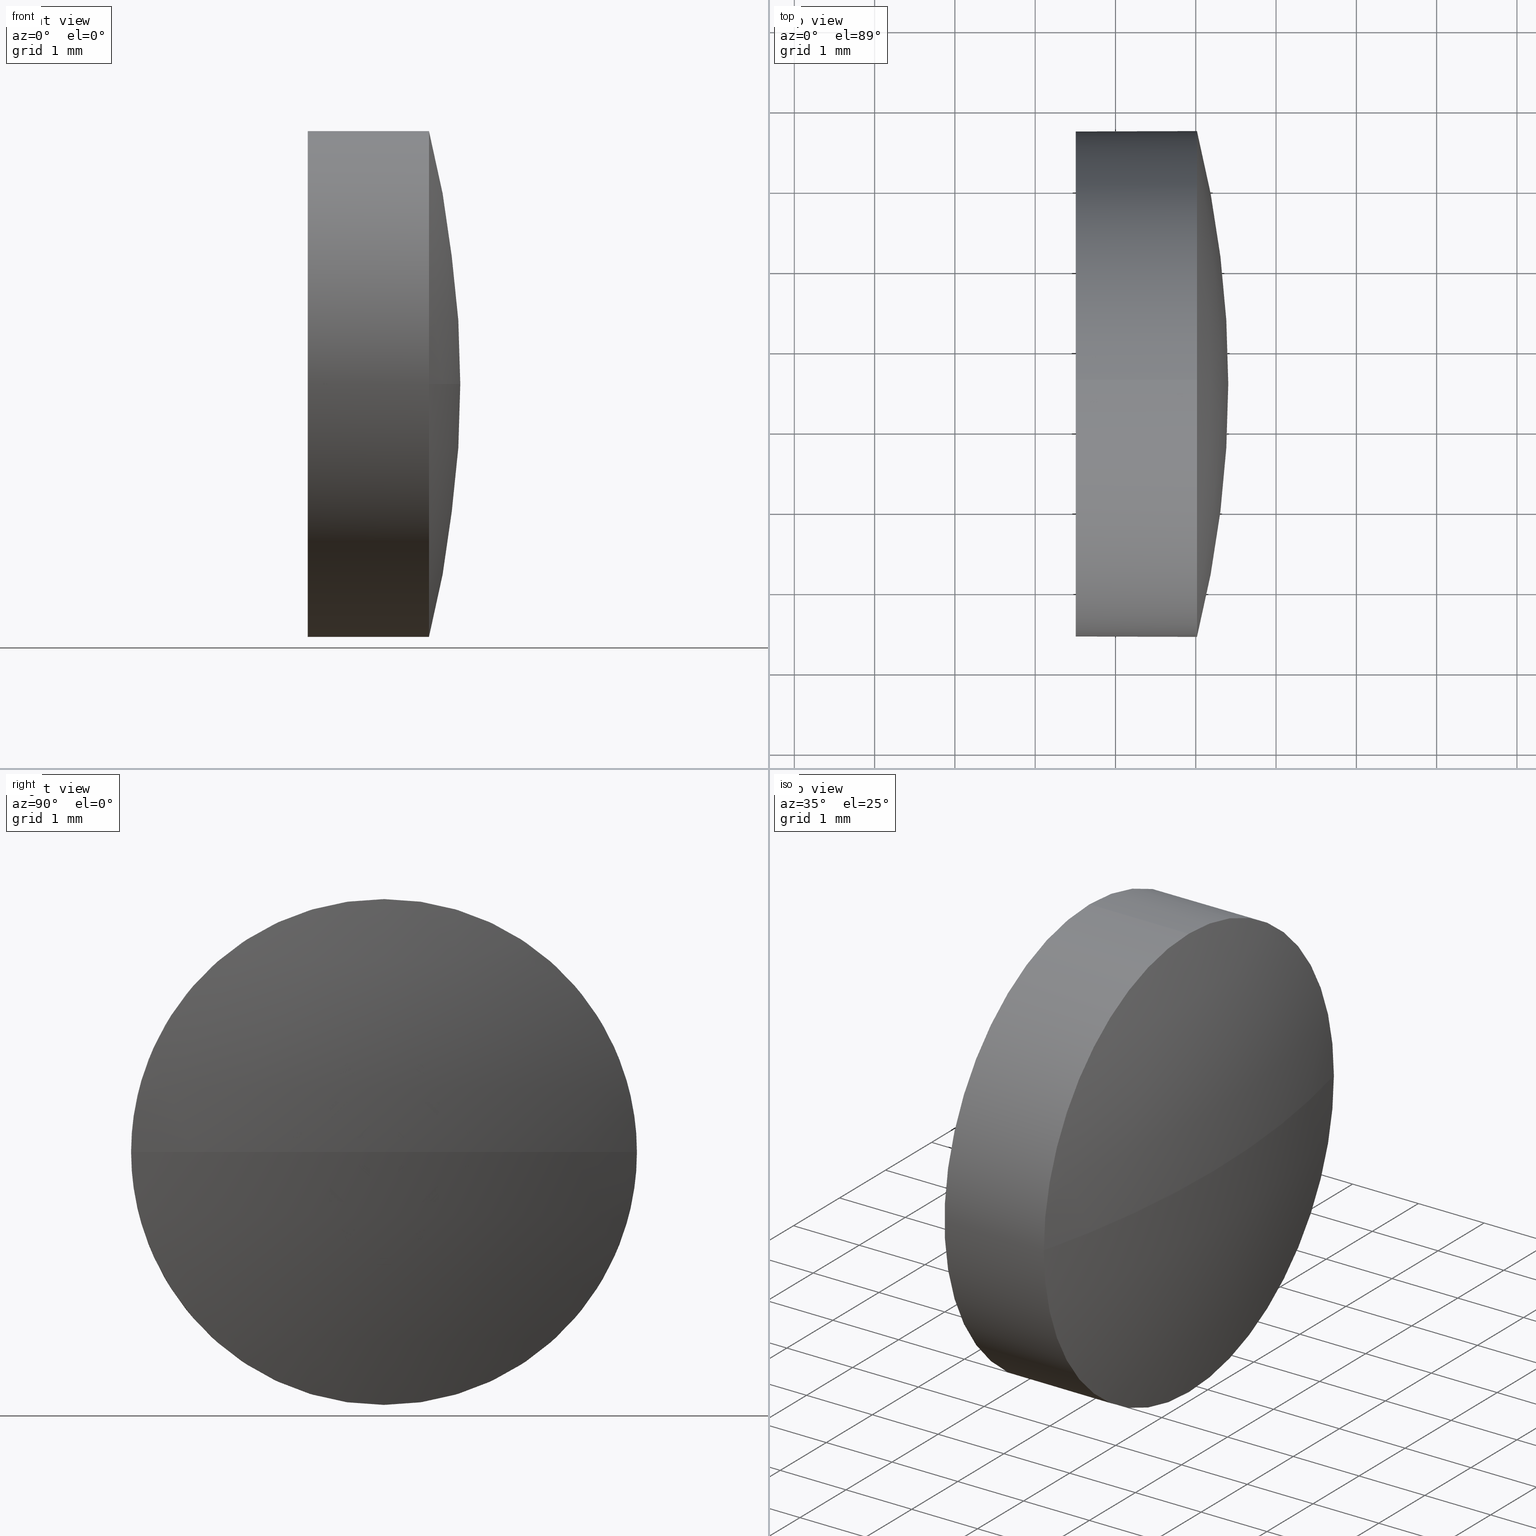
[diagram: canonical four-view strip — front | top / right | iso, engineering-drawing reading convention]
A machine part, canonical four-view strip (front | top / right | iso — engineering-drawing reading convention). The complete STEP part file that produces these views, byte-faithful:
ISO-10303-21;
HEADER;
FILE_DESCRIPTION (( 'STEP AP214' ),
    '1' );
FILE_NAME ('100183.STEP',
    '2019-05-21T03:13:47',
    ( '' ),
    ( '' ),
    'SwSTEP 2.0',
    'SolidWorks 2016',
    '' );
FILE_SCHEMA (( 'AUTOMOTIVE_DESIGN' ));
ENDSEC;

DATA;
#1 = PRODUCT_RELATED_PRODUCT_CATEGORY ( 'part', '', ( #81 ) ) ;
#2 = FACE_OUTER_BOUND ( 'NONE', #88, .T. ) ;
#3 = EDGE_LOOP ( 'NONE', ( #176, #147, #163, #174, #94 ) ) ;
#4 = AXIS2_PLACEMENT_3D ( 'NONE', #104, #184, #106 ) ;
#5 = CARTESIAN_POINT ( 'NONE',  ( 616.6993345842506600, 86.56717814228176200, 0.0000000000000000000 ) ) ;
#6 = CIRCLE ( 'NONE', #175, 3.149999999999999900 ) ;
#7 = CARTESIAN_POINT ( 'NONE',  ( 619.0150449967926500, 86.56717814228176200, 0.0000000000000000000 ) ) ;
#8 = PRODUCT_DEFINITION_FORMATION_WITH_SPECIFIED_SOURCE ( '�κ�', '', #81, .NOT_KNOWN. ) ;
#9 = ADVANCED_FACE ( 'NONE', ( #16 ), #151, .T. ) ;
#10 = CARTESIAN_POINT ( 'NONE',  ( 606.4888911506387800, 86.56717814228196100, 0.0000000000000000000 ) ) ;
#11 = PLANE ( 'NONE',  #70 ) ;
#12 = CARTESIAN_POINT ( 'NONE',  ( 619.0150449967926500, 86.56717814228176200, 0.0000000000000000000 ) ) ;
#13 = ORIENTED_EDGE ( 'NONE', *, *, #124, .T. ) ;
#14 = EDGE_LOOP ( 'NONE', ( #179, #43, #99, #171 ) ) ;
#15 = STYLED_ITEM ( 'NONE', ( #54 ), #46 ) ;
#16 = FACE_OUTER_BOUND ( 'NONE', #141, .T. ) ;
#17 = ORIENTED_EDGE ( 'NONE', *, *, #153, .T. ) ;
#18 = DIRECTION ( 'NONE',  ( 0.0000000000000000000, 0.0000000000000000000, 1.000000000000000000 ) ) ;
#19 = CARTESIAN_POINT ( 'NONE',  ( 606.4888911506387800, 86.56717814228196100, 0.0000000000000000000 ) ) ;
#20 = ORIENTED_EDGE ( 'NONE', *, *, #153, .F. ) ;
#21 = DIRECTION ( 'NONE',  ( -1.000000000000000000, -0.0000000000000000000, -0.0000000000000000000 ) ) ;
#22 = CARTESIAN_POINT ( 'NONE',  ( 617.5050449967925500, 86.56717814228176200, 0.0000000000000000000 ) ) ;
#23 = PRODUCT_DEFINITION_CONTEXT ( 'detailed design', #165, 'design' ) ;
#24 = APPLICATION_PROTOCOL_DEFINITION ( 'draft international standard', 'automotive_design', 1998, #80 ) ;
#25 = EDGE_LOOP ( 'NONE', ( #30, #74, #13, #86, #20 ) ) ;
#26 = DIRECTION ( 'NONE',  ( 0.0000000000000000000, 0.0000000000000000000, -1.000000000000000000 ) ) ;
#27 = UNCERTAINTY_MEASURE_WITH_UNIT (LENGTH_MEASURE( 1.000000000000000100E-005 ), #182, 'distance_accuracy_value', 'NONE');
#28 = AXIS2_PLACEMENT_3D ( 'NONE', #44, #167, #144 ) ;
#29 = PRODUCT_DEFINITION_SHAPE ( 'NONE', 'NONE',  #138 ) ;
#30 = ORIENTED_EDGE ( 'NONE', *, *, #119, .F. ) ;
#31 = VECTOR ( 'NONE', #136, 1000.000000000000000 ) ;
#32 = AXIS2_PLACEMENT_3D ( 'NONE', #60, #117, #41 ) ;
#33 = DIRECTION ( 'NONE',  ( 0.0000000000000000000, -1.000000000000000000, 0.0000000000000000000 ) ) ;
#34 = CARTESIAN_POINT ( 'NONE',  ( 616.6993345842506600, 86.56717814228176200, 0.0000000000000000000 ) ) ;
#35 = CARTESIAN_POINT ( 'NONE',  ( 619.0150449967926500, 86.56717814228176200, -3.149999999999999900 ) ) ;
#36 = CIRCLE ( 'NONE', #93, 3.149999999999999900 ) ;
#37 = CARTESIAN_POINT ( 'NONE',  ( 619.0150449967926500, 86.56717814228176200, 3.149999999999999900 ) ) ;
#38 = DIRECTION ( 'NONE',  ( -1.000000000000000000, 0.0000000000000000000, 0.0000000000000000000 ) ) ;
#39 = UNCERTAINTY_MEASURE_WITH_UNIT (LENGTH_MEASURE( 1.000000000000000100E-005 ), #75, 'distance_accuracy_value', 'NONE');
#40 = ADVANCED_FACE ( 'NONE', ( #137 ), #111, .T. ) ;
#41 = DIRECTION ( 'NONE',  ( 1.000000000000000000, 0.0000000000000000000, 0.0000000000000000000 ) ) ;
#42 = LINE ( 'NONE', #120, #31 ) ;
#43 = ORIENTED_EDGE ( 'NONE', *, *, #149, .T. ) ;
#44 = CARTESIAN_POINT ( 'NONE',  ( 606.4888911506387800, 86.56717814228196100, 0.0000000000000000000 ) ) ;
#45 = AXIS2_PLACEMENT_3D ( 'NONE', #12, #71, #166 ) ;
#46 = MANIFOLD_SOLID_BREP ( '��ת2', #87 ) ;
#47 = EDGE_CURVE ( 'NONE', #61, #128, #159, .T. ) ;
#48 = CIRCLE ( 'NONE', #161, 12.91615384615385400 ) ;
#49 = UNCERTAINTY_MEASURE_WITH_UNIT (LENGTH_MEASURE( 1.000000000000000100E-005 ), #118, 'distance_accuracy_value', 'NONE');
#50 = AXIS2_PLACEMENT_3D ( 'NONE', #34, #56, #100 ) ;
#51 = ORIENTED_EDGE ( 'NONE', *, *, #157, .F. ) ;
#52 = AXIS2_PLACEMENT_3D ( 'NONE', #5, #177, #18 ) ;
#53 =( NAMED_UNIT ( * ) PLANE_ANGLE_UNIT ( ) SI_UNIT ( $, .RADIAN. ) );
#54 = PRESENTATION_STYLE_ASSIGNMENT (( #77 ) ) ;
#55 = DIRECTION ( 'NONE',  ( 0.0000000000000000000, 0.0000000000000000000, 1.000000000000000000 ) ) ;
#56 = DIRECTION ( 'NONE',  ( -1.000000000000000000, -0.0000000000000000000, -0.0000000000000000000 ) ) ;
#57 =( NAMED_UNIT ( * ) SI_UNIT ( $, .STERADIAN. ) SOLID_ANGLE_UNIT ( ) );
#58 = ORIENTED_EDGE ( 'NONE', *, *, #47, .T. ) ;
#59 = PRODUCT_CONTEXT ( 'NONE', #80, 'mechanical' ) ;
#60 = CARTESIAN_POINT ( 'NONE',  ( 0.0000000000000000000, 0.0000000000000000000, 0.0000000000000000000 ) ) ;
#61 = VERTEX_POINT ( 'NONE', #114 ) ;
#62 = CARTESIAN_POINT ( 'NONE',  ( 617.5050449967925500, 86.56717814228176200, 0.0000000000000000000 ) ) ;
#63 = VERTEX_POINT ( 'NONE', #37 ) ;
#64 = PRESENTATION_LAYER_ASSIGNMENT (  '', '', ( #127 ) ) ;
#65 = SURFACE_STYLE_FILL_AREA ( #156 ) ;
#66 = CARTESIAN_POINT ( 'NONE',  ( 619.4050449967926400, 86.56717814228196100, 0.0000000000000000000 ) ) ;
#67 = CIRCLE ( 'NONE', #4, 3.149999999999999900 ) ;
#68 = SURFACE_SIDE_STYLE ('',( #140 ) ) ;
#69 = CARTESIAN_POINT ( 'NONE',  ( 619.0150449967926500, 83.41717814228191200, 0.0000000000000000000 ) ) ;
#70 = AXIS2_PLACEMENT_3D ( 'NONE', #62, #102, #83 ) ;
#71 = DIRECTION ( 'NONE',  ( -1.000000000000000000, -0.0000000000000000000, -0.0000000000000000000 ) ) ;
#72 = EDGE_CURVE ( 'NONE', #63, #168, #36, .T. ) ;
#73 = AXIS2_PLACEMENT_3D ( 'NONE', #10, #143, #160 ) ;
#74 = ORIENTED_EDGE ( 'NONE', *, *, #185, .T. ) ;
#75 =( LENGTH_UNIT ( ) NAMED_UNIT ( * ) SI_UNIT ( .MILLI., .METRE. ) );
#76 =( GEOMETRIC_REPRESENTATION_CONTEXT ( 3 ) GLOBAL_UNCERTAINTY_ASSIGNED_CONTEXT ( ( #49 ) ) GLOBAL_UNIT_ASSIGNED_CONTEXT ( ( #118, #103, #57 ) ) REPRESENTATION_CONTEXT ( 'NONE', 'WORKASPACE' ) );
#77 = SURFACE_STYLE_USAGE ( .BOTH. , #90 ) ;
#78 = PRESENTATION_LAYER_ASSIGNMENT (  '', '', ( #15 ) ) ;
#79 = DIRECTION ( 'NONE',  ( -1.000000000000000000, -0.0000000000000000000, -0.0000000000000000000 ) ) ;
#80 = APPLICATION_CONTEXT ( 'automotive_design' ) ;
#81 = PRODUCT ( '100183', '100183', '', ( #59 ) ) ;
#82 = ADVANCED_FACE ( 'NONE', ( #139 ), #98, .T. ) ;
#83 = DIRECTION ( 'NONE',  ( 0.0000000000000000000, 0.0000000000000000000, -1.000000000000000000 ) ) ;
#84 = SURFACE_STYLE_USAGE ( .BOTH. , #68 ) ;
#85 = CIRCLE ( 'NONE', #28, 12.91615384615382700 ) ;
#86 = ORIENTED_EDGE ( 'NONE', *, *, #132, .T. ) ;
#87 = CLOSED_SHELL ( 'NONE', ( #82, #40, #9, #113, #180 ) ) ;
#88 = EDGE_LOOP ( 'NONE', ( #58, #17 ) ) ;
#89 = DIRECTION ( 'NONE',  ( -1.000000000000000000, -0.0000000000000000000, -0.0000000000000000000 ) ) ;
#90 = SURFACE_SIDE_STYLE ('',( #65 ) ) ;
#91 = DIRECTION ( 'NONE',  ( -1.000000000000000000, -0.0000000000000000000, -0.0000000000000000000 ) ) ;
#92 =( NAMED_UNIT ( * ) SI_UNIT ( $, .STERADIAN. ) SOLID_ANGLE_UNIT ( ) );
#93 = AXIS2_PLACEMENT_3D ( 'NONE', #7, #89, #129 ) ;
#94 = ORIENTED_EDGE ( 'NONE', *, *, #72, .T. ) ;
#95 = AXIS2_PLACEMENT_3D ( 'NONE', #19, #55, #33 ) ;
#96 = CIRCLE ( 'NONE', #186, 3.149999999999999900 ) ;
#97 = ORIENTED_EDGE ( 'NONE', *, *, #185, .F. ) ;
#98 = CYLINDRICAL_SURFACE ( 'NONE', #50, 3.149999999999999900 ) ;
#99 = ORIENTED_EDGE ( 'NONE', *, *, #72, .F. ) ;
#100 = DIRECTION ( 'NONE',  ( 0.0000000000000000000, 0.0000000000000000000, 1.000000000000000000 ) ) ;
#101 = AXIS2_PLACEMENT_3D ( 'NONE', #22, #21, #130 ) ;
#102 = DIRECTION ( 'NONE',  ( 1.000000000000000000, 0.0000000000000000000, 0.0000000000000000000 ) ) ;
#103 =( NAMED_UNIT ( * ) PLANE_ANGLE_UNIT ( ) SI_UNIT ( $, .RADIAN. ) );
#104 = CARTESIAN_POINT ( 'NONE',  ( 619.0150449967926500, 86.56717814228176200, 0.0000000000000000000 ) ) ;
#105 = VERTEX_POINT ( 'NONE', #35 ) ;
#106 = DIRECTION ( 'NONE',  ( 0.0000000000000000000, 0.0000000000000000000, 1.000000000000000000 ) ) ;
#107 = CARTESIAN_POINT ( 'NONE',  ( 606.4888911506387800, 86.56717814228196100, 0.0000000000000000000 ) ) ;
#108 = MECHANICAL_DESIGN_GEOMETRIC_PRESENTATION_REPRESENTATION (  '', ( #127 ), #110 ) ;
#109 = CYLINDRICAL_SURFACE ( 'NONE', #52, 3.149999999999999900 ) ;
#110 =( GEOMETRIC_REPRESENTATION_CONTEXT ( 3 ) GLOBAL_UNCERTAINTY_ASSIGNED_CONTEXT ( ( #27 ) ) GLOBAL_UNIT_ASSIGNED_CONTEXT ( ( #182, #183, #92 ) ) REPRESENTATION_CONTEXT ( 'NONE', 'WORKASPACE' ) );
#111 = SPHERICAL_SURFACE ( 'NONE', #95, 12.91615384615383100 ) ;
#112 = ADVANCED_BREP_SHAPE_REPRESENTATION ( '100183', ( #46, #32 ), #76 ) ;
#113 = ADVANCED_FACE ( 'NONE', ( #152 ), #109, .T. ) ;
#114 = CARTESIAN_POINT ( 'NONE',  ( 617.5050449967925500, 86.56717814228176200, 3.149999999999999900 ) ) ;
#115 = FILL_AREA_STYLE_COLOUR ( '', #146 ) ;
#116 = VERTEX_POINT ( 'NONE', #66 ) ;
#117 = DIRECTION ( 'NONE',  ( 0.0000000000000000000, 0.0000000000000000000, 1.000000000000000000 ) ) ;
#118 =( LENGTH_UNIT ( ) NAMED_UNIT ( * ) SI_UNIT ( .MILLI., .METRE. ) );
#119 = EDGE_CURVE ( 'NONE', #105, #128, #131, .T. ) ;
#120 = CARTESIAN_POINT ( 'NONE',  ( 616.6993345842506600, 86.56717814228176200, 3.149999999999999900 ) ) ;
#121 = EDGE_CURVE ( 'NONE', #116, #155, #48, .T. ) ;
#122 = APPLICATION_PROTOCOL_DEFINITION ( 'draft international standard', 'automotive_design', 1998, #165 ) ;
#123 = COLOUR_RGB ( '',1.000000000000000000, 1.000000000000000000, 1.000000000000000000 ) ;
#124 = EDGE_CURVE ( 'NONE', #155, #63, #6, .T. ) ;
#125 = ORIENTED_EDGE ( 'NONE', *, *, #149, .F. ) ;
#126 = CARTESIAN_POINT ( 'NONE',  ( 616.6993345842506600, 86.56717814228176200, -3.149999999999999900 ) ) ;
#127 = STYLED_ITEM ( 'NONE', ( #150 ), #112 ) ;
#128 = VERTEX_POINT ( 'NONE', #134 ) ;
#129 = DIRECTION ( 'NONE',  ( 0.0000000000000000000, 0.0000000000000000000, 1.000000000000000000 ) ) ;
#130 = DIRECTION ( 'NONE',  ( 0.0000000000000000000, 0.0000000000000000000, 1.000000000000000000 ) ) ;
#131 = LINE ( 'NONE', #126, #162 ) ;
#132 = EDGE_CURVE ( 'NONE', #63, #61, #42, .T. ) ;
#133 = DIRECTION ( 'NONE',  ( 0.0000000000000000000, 0.0000000000000000000, 1.000000000000000000 ) ) ;
#134 = CARTESIAN_POINT ( 'NONE',  ( 617.5050449967925500, 86.56717814228176200, -3.149999999999999900 ) ) ;
#135 = FILL_AREA_STYLE ('',( #115 ) ) ;
#136 = DIRECTION ( 'NONE',  ( -1.000000000000000000, -0.0000000000000000000, -0.0000000000000000000 ) ) ;
#137 = FACE_OUTER_BOUND ( 'NONE', #14, .T. ) ;
#138 = PRODUCT_DEFINITION ( 'δ֪', '', #8, #23 ) ;
#139 = FACE_OUTER_BOUND ( 'NONE', #3, .T. ) ;
#140 = SURFACE_STYLE_FILL_AREA ( #135 ) ;
#141 = EDGE_LOOP ( 'NONE', ( #125, #172, #97, #51 ) ) ;
#142 = CARTESIAN_POINT ( 'NONE',  ( 619.0150449967926500, 89.71717814228181000, 3.857637417313981300E-016 ) ) ;
#143 = DIRECTION ( 'NONE',  ( 0.0000000000000000000, 0.0000000000000000000, 1.000000000000000000 ) ) ;
#144 = DIRECTION ( 'NONE',  ( 0.0000000000000000000, -1.000000000000000000, -1.224646799147353700E-016 ) ) ;
#145 = CARTESIAN_POINT ( 'NONE',  ( 619.0150449967926500, 86.56717814228176200, 0.0000000000000000000 ) ) ;
#146 = COLOUR_RGB ( '',1.000000000000000000, 1.000000000000000000, 1.000000000000000000 ) ;
#147 = ORIENTED_EDGE ( 'NONE', *, *, #119, .T. ) ;
#148 = DIRECTION ( 'NONE',  ( 0.0000000000000000000, 0.0000000000000000000, 1.000000000000000000 ) ) ;
#149 = EDGE_CURVE ( 'NONE', #116, #168, #85, .T. ) ;
#150 = PRESENTATION_STYLE_ASSIGNMENT (( #84 ) ) ;
#151 = SPHERICAL_SURFACE ( 'NONE', #73, 12.91615384615383100 ) ;
#152 = FACE_OUTER_BOUND ( 'NONE', #25, .T. ) ;
#153 = EDGE_CURVE ( 'NONE', #128, #61, #96, .T. ) ;
#154 = SHAPE_DEFINITION_REPRESENTATION ( #29, #112 ) ;
#155 = VERTEX_POINT ( 'NONE', #69 ) ;
#156 = FILL_AREA_STYLE ('',( #158 ) ) ;
#157 = EDGE_CURVE ( 'NONE', #168, #105, #67, .T. ) ;
#158 = FILL_AREA_STYLE_COLOUR ( '', #123 ) ;
#159 = CIRCLE ( 'NONE', #101, 3.149999999999999900 ) ;
#160 = DIRECTION ( 'NONE',  ( 0.0000000000000000000, -1.000000000000000000, 0.0000000000000000000 ) ) ;
#161 = AXIS2_PLACEMENT_3D ( 'NONE', #107, #26, #38 ) ;
#162 = VECTOR ( 'NONE', #164, 1000.000000000000000 ) ;
#163 = ORIENTED_EDGE ( 'NONE', *, *, #47, .F. ) ;
#164 = DIRECTION ( 'NONE',  ( -1.000000000000000000, -0.0000000000000000000, -0.0000000000000000000 ) ) ;
#165 = APPLICATION_CONTEXT ( 'automotive_design' ) ;
#166 = DIRECTION ( 'NONE',  ( 0.0000000000000000000, 0.0000000000000000000, 1.000000000000000000 ) ) ;
#167 = DIRECTION ( 'NONE',  ( 0.0000000000000000000, -1.224646799147353200E-016, 1.000000000000000000 ) ) ;
#168 = VERTEX_POINT ( 'NONE', #142 ) ;
#169 = MECHANICAL_DESIGN_GEOMETRIC_PRESENTATION_REPRESENTATION (  '', ( #15 ), #173 ) ;
#170 = CIRCLE ( 'NONE', #45, 3.149999999999999900 ) ;
#171 = ORIENTED_EDGE ( 'NONE', *, *, #124, .F. ) ;
#172 = ORIENTED_EDGE ( 'NONE', *, *, #121, .T. ) ;
#173 =( GEOMETRIC_REPRESENTATION_CONTEXT ( 3 ) GLOBAL_UNCERTAINTY_ASSIGNED_CONTEXT ( ( #39 ) ) GLOBAL_UNIT_ASSIGNED_CONTEXT ( ( #75, #53, #178 ) ) REPRESENTATION_CONTEXT ( 'NONE', 'WORKASPACE' ) );
#174 = ORIENTED_EDGE ( 'NONE', *, *, #132, .F. ) ;
#175 = AXIS2_PLACEMENT_3D ( 'NONE', #145, #91, #133 ) ;
#176 = ORIENTED_EDGE ( 'NONE', *, *, #157, .T. ) ;
#177 = DIRECTION ( 'NONE',  ( -1.000000000000000000, -0.0000000000000000000, -0.0000000000000000000 ) ) ;
#178 =( NAMED_UNIT ( * ) SI_UNIT ( $, .STERADIAN. ) SOLID_ANGLE_UNIT ( ) );
#179 = ORIENTED_EDGE ( 'NONE', *, *, #121, .F. ) ;
#180 = ADVANCED_FACE ( 'NONE', ( #2 ), #11, .F. ) ;
#181 = CARTESIAN_POINT ( 'NONE',  ( 617.5050449967925500, 86.56717814228176200, 0.0000000000000000000 ) ) ;
#182 =( LENGTH_UNIT ( ) NAMED_UNIT ( * ) SI_UNIT ( .MILLI., .METRE. ) );
#183 =( NAMED_UNIT ( * ) PLANE_ANGLE_UNIT ( ) SI_UNIT ( $, .RADIAN. ) );
#184 = DIRECTION ( 'NONE',  ( -1.000000000000000000, -0.0000000000000000000, -0.0000000000000000000 ) ) ;
#185 = EDGE_CURVE ( 'NONE', #105, #155, #170, .T. ) ;
#186 = AXIS2_PLACEMENT_3D ( 'NONE', #181, #79, #148 ) ;
ENDSEC;
END-ISO-10303-21;
